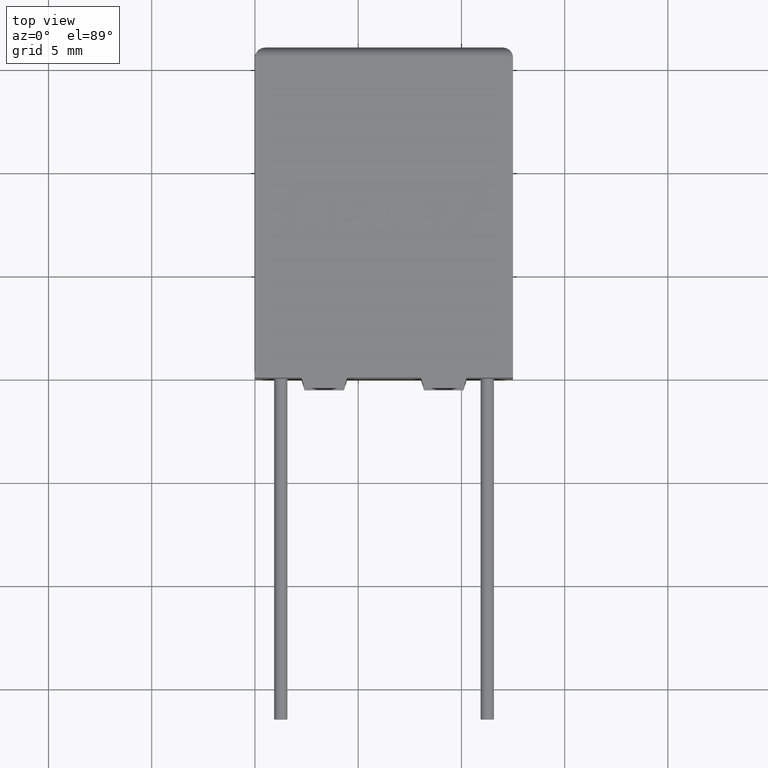
[diagram: clean part render]
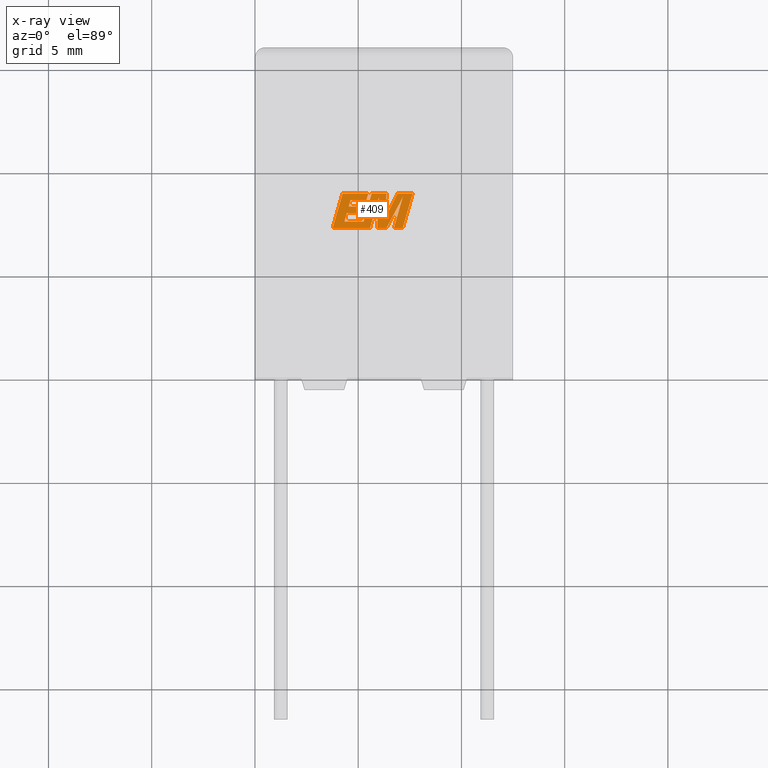
[diagram: x-ray — body ghosted, one internal face saturated and labeled with its STEP entity id]
A machine part, top view, then the same camera in x-ray: the body is ghosted and one INTERNAL B-rep face — a face not visible from any outside direction — is saturated and labeled: STEP entity #409.
In plain terms, the highlighted planar face has unit normal (0, 0, -1).
Its self-contained STEP definition (entity closure, byte-faithful):
#37 = LINE ( 'NONE', #587, #1955 ) ;
#44 = LINE ( 'NONE', #140, #2229 ) ;
#45 = EDGE_CURVE ( 'NONE', #969, #1070, #987, .T. ) ;
#71 = ORIENTED_EDGE ( 'NONE', *, *, #2756, .F. ) ;
#105 = CARTESIAN_POINT ( 'NONE',  ( 6.305562013259007300, 7.716622498760993500, 6.500000000000000000 ) ) ;
#109 = EDGE_CURVE ( 'NONE', #1076, #1800, #2380, .T. ) ;
#128 = DIRECTION ( 'NONE',  ( 0.2740217765954066100, 0.9617234872620595800, 0.0000000000000000000 ) ) ;
#132 = VECTOR ( 'NONE', #2176, 1000.000000000000200 ) ;
#140 = CARTESIAN_POINT ( 'NONE',  ( 5.918042331267495900, 7.236799999999948200, 6.500000000000000000 ) ) ;
#178 = ORIENTED_EDGE ( 'NONE', *, *, #2631, .F. ) ;
#183 = VERTEX_POINT ( 'NONE', #3063 ) ;
#196 = CARTESIAN_POINT ( 'NONE',  ( 7.154716720800360400, 7.236799999999948200, 6.500000000000000000 ) ) ;
#212 = EDGE_CURVE ( 'NONE', #1439, #299, #1859, .T. ) ;
#221 = DIRECTION ( 'NONE',  ( -0.05596501978068205200, -0.9984327301130245800, 0.0000000000000000000 ) ) ;
#284 = CARTESIAN_POINT ( 'NONE',  ( 6.900873444579220400, 8.916926350617030600, 6.500000000000000000 ) ) ;
#299 = VERTEX_POINT ( 'NONE', #2149 ) ;
#339 = ORIENTED_EDGE ( 'NONE', *, *, #1787, .F. ) ;
#356 = EDGE_CURVE ( 'NONE', #1574, #1439, #44, .T. ) ;
#368 = VECTOR ( 'NONE', #2725, 1000.000000000000100 ) ;
#378 = PLANE ( 'NONE',  #2338 ) ;
#387 = DIRECTION ( 'NONE',  ( -1.000000000000000000, 0.0000000000000000000, 0.0000000000000000000 ) ) ;
#397 = VECTOR ( 'NONE', #1173, 1000.000000000000100 ) ;
#404 = DIRECTION ( 'NONE',  ( -1.000000000000000000, 0.0000000000000000000, 0.0000000000000000000 ) ) ;
#406 = EDGE_CURVE ( 'NONE', #654, #2210, #823, .T. ) ;
#409 = ADVANCED_FACE ( 'NONE', ( #741 ), #378, .T. ) ;
#424 = CARTESIAN_POINT ( 'NONE',  ( 5.260969183754191600, 8.284619691102300000, 6.500000000000000000 ) ) ;
#433 = DIRECTION ( 'NONE',  ( -1.000000000000000000, 0.0000000000000000000, 0.0000000000000000000 ) ) ;
#452 = VERTEX_POINT ( 'NONE', #2914 ) ;
#456 = VECTOR ( 'NONE', #890, 1000.000000000000000 ) ;
#587 = CARTESIAN_POINT ( 'NONE',  ( 5.273347318481253200, 7.236799999999946400, 6.500000000000000000 ) ) ;
#634 = ORIENTED_EDGE ( 'NONE', *, *, #1789, .F. ) ;
#654 = VERTEX_POINT ( 'NONE', #1979 ) ;
#670 = LINE ( 'NONE', #1153, #949 ) ;
#683 = CARTESIAN_POINT ( 'NONE',  ( 7.159375763349700600, 8.739775453150048900, 6.500000000000000000 ) ) ;
#691 = CARTESIAN_POINT ( 'NONE',  ( 5.172253248538842400, 7.974021963069283500, 6.500000000000000000 ) ) ;
#703 = DIRECTION ( 'NONE',  ( -1.000000000000000000, 0.0000000000000000000, 0.0000000000000000000 ) ) ;
#738 = LINE ( 'NONE', #1516, #1770 ) ;
#741 = FACE_OUTER_BOUND ( 'NONE', #2788, .T. ) ;
#776 = LINE ( 'NONE', #2749, #2897 ) ;
#811 = ORIENTED_EDGE ( 'NONE', *, *, #1026, .F. ) ;
#817 = VECTOR ( 'NONE', #965, 1000.000000000000100 ) ;
#823 = LINE ( 'NONE', #2875, #904 ) ;
#876 = ORIENTED_EDGE ( 'NONE', *, *, #1412, .F. ) ;
#883 = CARTESIAN_POINT ( 'NONE',  ( 5.572404720726212600, 7.236799999999948200, 6.500000000000000000 ) ) ;
#884 = DIRECTION ( 'NONE',  ( -1.000000000000000000, 0.0000000000000000000, 0.0000000000000000000 ) ) ;
#890 = DIRECTION ( 'NONE',  ( 0.2732148821745924400, 0.9619530280415585800, 0.0000000000000000000 ) ) ;
#904 = VECTOR ( 'NONE', #128, 1000.000000000000100 ) ;
#910 = ORIENTED_EDGE ( 'NONE', *, *, #2080, .F. ) ;
#918 = DIRECTION ( 'NONE',  ( 0.2763139702539115800, 0.9610674221107072800, 0.0000000000000000000 ) ) ;
#932 = ORIENTED_EDGE ( 'NONE', *, *, #3242, .F. ) ;
#943 = CARTESIAN_POINT ( 'NONE',  ( 6.001884662761726800, 8.732572328159170300, 6.500000000000000000 ) ) ;
#949 = VECTOR ( 'NONE', #884, 1000.000000000000000 ) ;
#963 = VERTEX_POINT ( 'NONE', #1617 ) ;
#965 = DIRECTION ( 'NONE',  ( -0.2760118818968562100, -0.9611542233438689100, 0.0000000000000000000 ) ) ;
#969 = VERTEX_POINT ( 'NONE', #2870 ) ;
#974 = CARTESIAN_POINT ( 'NONE',  ( 5.172253248538842400, 7.974021963069283500, 6.500000000000000000 ) ) ;
#987 = LINE ( 'NONE', #2671, #1229 ) ;
#1026 = EDGE_CURVE ( 'NONE', #1088, #2871, #1895, .T. ) ;
#1070 = VERTEX_POINT ( 'NONE', #1901 ) ;
#1076 = VERTEX_POINT ( 'NONE', #2882 ) ;
#1088 = VERTEX_POINT ( 'NONE', #883 ) ;
#1121 = VERTEX_POINT ( 'NONE', #1638 ) ;
#1126 = CARTESIAN_POINT ( 'NONE',  ( 5.654668496389301200, 8.916926350617030600, 6.500000000000000000 ) ) ;
#1134 = LINE ( 'NONE', #3077, #456 ) ;
#1137 = CARTESIAN_POINT ( 'NONE',  ( 0.05673879063646859000, -2.086099661403235200, 6.499999999999998200 ) ) ;
#1151 = LINE ( 'NONE', #2585, #2910 ) ;
#1153 = CARTESIAN_POINT ( 'NONE',  ( 5.263615438179811300, 7.556445057373055700, 6.500000000000000000 ) ) ;
#1168 = ORIENTED_EDGE ( 'NONE', *, *, #356, .F. ) ;
#1173 = DIRECTION ( 'NONE',  ( 0.2759782365590801600, 0.9611638845408936300, 0.0000000000000000000 ) ) ;
#1190 = LINE ( 'NONE', #691, #132 ) ;
#1211 = ORIENTED_EDGE ( 'NONE', *, *, #2177, .F. ) ;
#1218 = VECTOR ( 'NONE', #2411, 1000.000000000000000 ) ;
#1229 = VECTOR ( 'NONE', #2171, 1000.000000000000000 ) ;
#1259 = CARTESIAN_POINT ( 'NONE',  ( 5.396255110067309100, 8.597122926668934200, 6.500000000000000000 ) ) ;
#1268 = LINE ( 'NONE', #2069, #2771 ) ;
#1319 = CARTESIAN_POINT ( 'NONE',  ( 7.637765434955762000, 8.916926350617030600, 6.500000000000000000 ) ) ;
#1374 = DIRECTION ( 'NONE',  ( 1.000000000000000000, 0.0000000000000000000, 0.0000000000000000000 ) ) ;
#1412 = EDGE_CURVE ( 'NONE', #2657, #1703, #776, .T. ) ;
#1439 = VERTEX_POINT ( 'NONE', #2802 ) ;
#1446 = DIRECTION ( 'NONE',  ( -0.2765379750249960500, -0.9610029908221278100, 0.0000000000000000000 ) ) ;
#1485 = ORIENTED_EDGE ( 'NONE', *, *, #2872, .F. ) ;
#1498 = VERTEX_POINT ( 'NONE', #284 ) ;
#1501 = LINE ( 'NONE', #2618, #1841 ) ;
#1516 = CARTESIAN_POINT ( 'NONE',  ( 6.900873444579220400, 8.916926350617030600, 6.500000000000000000 ) ) ;
#1527 = DIRECTION ( 'NONE',  ( 0.2793947940878287500, 0.9601763114327596100, 0.0000000000000000000 ) ) ;
#1574 = VERTEX_POINT ( 'NONE', #2249 ) ;
#1593 = CARTESIAN_POINT ( 'NONE',  ( 4.630772375745746800, 8.597122926668934200, 6.500000000000000000 ) ) ;
#1617 = CARTESIAN_POINT ( 'NONE',  ( 4.245864962489515700, 8.916926350617030600, 6.500000000000000000 ) ) ;
#1618 = ORIENTED_EDGE ( 'NONE', *, *, #406, .F. ) ;
#1627 = EDGE_CURVE ( 'NONE', #1498, #183, #738, .T. ) ;
#1638 = CARTESIAN_POINT ( 'NONE',  ( 3.762392233244096200, 7.236799999999946400, 6.500000000000000000 ) ) ;
#1645 = ORIENTED_EDGE ( 'NONE', *, *, #2607, .F. ) ;
#1648 = DIRECTION ( 'NONE',  ( 1.000000000000000000, 4.833865254349439700E-015, 0.0000000000000000000 ) ) ;
#1688 = ORIENTED_EDGE ( 'NONE', *, *, #2211, .F. ) ;
#1703 = VERTEX_POINT ( 'NONE', #2052 ) ;
#1713 = CARTESIAN_POINT ( 'NONE',  ( 6.001884662761726800, 8.732572328159170300, 6.500000000000000000 ) ) ;
#1770 = VECTOR ( 'NONE', #2009, 1000.000000000000000 ) ;
#1787 = EDGE_CURVE ( 'NONE', #963, #1121, #3053, .T. ) ;
#1789 = EDGE_CURVE ( 'NONE', #3044, #2657, #2297, .T. ) ;
#1796 = ORIENTED_EDGE ( 'NONE', *, *, #45, .F. ) ;
#1800 = VERTEX_POINT ( 'NONE', #2673 ) ;
#1809 = DIRECTION ( 'NONE',  ( 1.000000000000000000, 0.0000000000000000000, 0.0000000000000000000 ) ) ;
#1812 = VECTOR ( 'NONE', #2078, 1000.000000000000100 ) ;
#1828 = VERTEX_POINT ( 'NONE', #1319 ) ;
#1841 = VECTOR ( 'NONE', #703, 1000.000000000000000 ) ;
#1859 = LINE ( 'NONE', #2851, #1812 ) ;
#1865 = VERTEX_POINT ( 'NONE', #974 ) ;
#1895 = LINE ( 'NONE', #2629, #397 ) ;
#1901 = CARTESIAN_POINT ( 'NONE',  ( 7.154716720800360400, 7.236799999999948200, 6.500000000000000000 ) ) ;
#1942 = CARTESIAN_POINT ( 'NONE',  ( 6.370174868380927600, 8.916926350617030600, 6.500000000000000000 ) ) ;
#1955 = VECTOR ( 'NONE', #1648, 1000.000000000000000 ) ;
#1972 = VECTOR ( 'NONE', #221, 1000.000000000000200 ) ;
#1979 = CARTESIAN_POINT ( 'NONE',  ( 4.332246267819605200, 7.556445057373055700, 6.500000000000000000 ) ) ;
#2009 = DIRECTION ( 'NONE',  ( -0.4443210308329058600, -0.8958676361827030400, 0.0000000000000000000 ) ) ;
#2045 = DIRECTION ( 'NONE',  ( -1.000000000000000000, 0.0000000000000000000, 0.0000000000000000000 ) ) ;
#2052 = CARTESIAN_POINT ( 'NONE',  ( 4.630772375745746800, 8.597122926668934200, 6.500000000000000000 ) ) ;
#2054 = LINE ( 'NONE', #105, #368 ) ;
#2069 = CARTESIAN_POINT ( 'NONE',  ( 5.487086005387529200, 8.916926350617030600, 6.500000000000000000 ) ) ;
#2078 = DIRECTION ( 'NONE',  ( 0.4668459304955212000, 0.8843386665637611400, 0.0000000000000000000 ) ) ;
#2080 = EDGE_CURVE ( 'NONE', #1121, #1088, #37, .T. ) ;
#2110 = ORIENTED_EDGE ( 'NONE', *, *, #1627, .F. ) ;
#2148 = ORIENTED_EDGE ( 'NONE', *, *, #212, .F. ) ;
#2149 = CARTESIAN_POINT ( 'NONE',  ( 7.159375763349700600, 8.739775453150048900, 6.500000000000000000 ) ) ;
#2171 = DIRECTION ( 'NONE',  ( 1.000000000000000000, 0.0000000000000000000, 0.0000000000000000000 ) ) ;
#2176 = DIRECTION ( 'NONE',  ( 0.2746459304916903900, 0.9615454294334477800, 0.0000000000000000000 ) ) ;
#2177 = EDGE_CURVE ( 'NONE', #183, #1076, #2054, .T. ) ;
#2210 = VERTEX_POINT ( 'NONE', #2808 ) ;
#2211 = EDGE_CURVE ( 'NONE', #2210, #1865, #1151, .T. ) ;
#2229 = VECTOR ( 'NONE', #3122, 1000.000000000000000 ) ;
#2249 = CARTESIAN_POINT ( 'NONE',  ( 5.918042331267495900, 7.236799999999948200, 6.500000000000000000 ) ) ;
#2250 = EDGE_CURVE ( 'NONE', #452, #654, #670, .T. ) ;
#2251 = ORIENTED_EDGE ( 'NONE', *, *, #2391, .F. ) ;
#2284 = CARTESIAN_POINT ( 'NONE',  ( 4.245864962489515700, 8.916926350617030600, 6.500000000000000000 ) ) ;
#2297 = LINE ( 'NONE', #424, #3166 ) ;
#2320 = ORIENTED_EDGE ( 'NONE', *, *, #2822, .F. ) ;
#2333 = VECTOR ( 'NONE', #918, 1000.000000000000200 ) ;
#2338 = AXIS2_PLACEMENT_3D ( 'NONE', #1137, #2885, #387 ) ;
#2362 = ORIENTED_EDGE ( 'NONE', *, *, #2386, .F. ) ;
#2369 = LINE ( 'NONE', #196, #2333 ) ;
#2380 = LINE ( 'NONE', #1942, #3027 ) ;
#2386 = EDGE_CURVE ( 'NONE', #1865, #3044, #1190, .T. ) ;
#2391 = EDGE_CURVE ( 'NONE', #2871, #1574, #2626, .T. ) ;
#2411 = DIRECTION ( 'NONE',  ( -0.2762517575166160700, -0.9610853065513907900, 0.0000000000000000000 ) ) ;
#2488 = VERTEX_POINT ( 'NONE', #1259 ) ;
#2497 = VECTOR ( 'NONE', #1809, 1000.000000000000000 ) ;
#2542 = ORIENTED_EDGE ( 'NONE', *, *, #2250, .F. ) ;
#2555 = CARTESIAN_POINT ( 'NONE',  ( 5.260969183754191600, 8.284619691102300000, 6.500000000000000000 ) ) ;
#2560 = ORIENTED_EDGE ( 'NONE', *, *, #3184, .F. ) ;
#2585 = CARTESIAN_POINT ( 'NONE',  ( 4.451225545210293800, 7.974021963069283500, 6.500000000000000000 ) ) ;
#2607 = EDGE_CURVE ( 'NONE', #2956, #963, #1268, .T. ) ;
#2618 = CARTESIAN_POINT ( 'NONE',  ( 7.637765434955762000, 8.916926350617030600, 6.500000000000000000 ) ) ;
#2626 = LINE ( 'NONE', #1713, #1972 ) ;
#2629 = CARTESIAN_POINT ( 'NONE',  ( 5.572404720726212600, 7.236799999999948200, 6.500000000000000000 ) ) ;
#2631 = EDGE_CURVE ( 'NONE', #1703, #2488, #3170, .T. ) ;
#2646 = VECTOR ( 'NONE', #1446, 1000.000000000000100 ) ;
#2657 = VERTEX_POINT ( 'NONE', #3052 ) ;
#2671 = CARTESIAN_POINT ( 'NONE',  ( 6.727770644011506800, 7.236799999999948200, 6.500000000000000000 ) ) ;
#2673 = CARTESIAN_POINT ( 'NONE',  ( 5.654668496389301200, 8.916926350617030600, 6.500000000000000000 ) ) ;
#2725 = DIRECTION ( 'NONE',  ( 0.05375259206908267900, 0.9985542843760947300, 0.0000000000000000000 ) ) ;
#2749 = CARTESIAN_POINT ( 'NONE',  ( 4.539839308439980000, 8.284619691102300000, 6.500000000000000000 ) ) ;
#2756 = EDGE_CURVE ( 'NONE', #1800, #452, #3167, .T. ) ;
#2771 = VECTOR ( 'NONE', #2045, 1000.000000000000000 ) ;
#2788 = EDGE_LOOP ( 'NONE', ( #932, #1485, #1796, #2320, #2148, #1168, #2251, #811, #910, #339, #1645, #2560, #178, #876, #634, #2362, #1688, #1618, #2542, #71, #2886, #1211, #2110 ) ) ;
#2802 = CARTESIAN_POINT ( 'NONE',  ( 6.365948990929820400, 7.236799999999948200, 6.500000000000000000 ) ) ;
#2808 = CARTESIAN_POINT ( 'NONE',  ( 4.451225545210293800, 7.974021963069283500, 6.500000000000000000 ) ) ;
#2812 = LINE ( 'NONE', #683, #817 ) ;
#2822 = EDGE_CURVE ( 'NONE', #299, #969, #2812, .T. ) ;
#2851 = CARTESIAN_POINT ( 'NONE',  ( 6.365948990929820400, 7.236799999999948200, 6.500000000000000000 ) ) ;
#2870 = CARTESIAN_POINT ( 'NONE',  ( 6.727770644011506800, 7.236799999999948200, 6.500000000000000000 ) ) ;
#2871 = VERTEX_POINT ( 'NONE', #943 ) ;
#2872 = EDGE_CURVE ( 'NONE', #1070, #1828, #2369, .T. ) ;
#2875 = CARTESIAN_POINT ( 'NONE',  ( 4.332246267819605200, 7.556445057373055700, 6.500000000000000000 ) ) ;
#2882 = CARTESIAN_POINT ( 'NONE',  ( 6.370174868380927600, 8.916926350617030600, 6.500000000000000000 ) ) ;
#2885 = DIRECTION ( 'NONE',  ( 0.0000000000000000000, 0.0000000000000000000, -1.000000000000000000 ) ) ;
#2886 = ORIENTED_EDGE ( 'NONE', *, *, #109, .F. ) ;
#2897 = VECTOR ( 'NONE', #1527, 1000.000000000000000 ) ;
#2910 = VECTOR ( 'NONE', #1374, 1000.000000000000000 ) ;
#2914 = CARTESIAN_POINT ( 'NONE',  ( 5.263615438179811300, 7.556445057373055700, 6.500000000000000000 ) ) ;
#2956 = VERTEX_POINT ( 'NONE', #2981 ) ;
#2981 = CARTESIAN_POINT ( 'NONE',  ( 5.487086005387529200, 8.916926350617030600, 6.500000000000000000 ) ) ;
#3027 = VECTOR ( 'NONE', #433, 1000.000000000000000 ) ;
#3044 = VERTEX_POINT ( 'NONE', #2555 ) ;
#3052 = CARTESIAN_POINT ( 'NONE',  ( 4.539839308439980000, 8.284619691102300000, 6.500000000000000000 ) ) ;
#3053 = LINE ( 'NONE', #2284, #2646 ) ;
#3063 = CARTESIAN_POINT ( 'NONE',  ( 6.305562013259007300, 7.716622498760993500, 6.500000000000000000 ) ) ;
#3077 = CARTESIAN_POINT ( 'NONE',  ( 5.396255110067309100, 8.597122926668934200, 6.500000000000000000 ) ) ;
#3122 = DIRECTION ( 'NONE',  ( 1.000000000000000000, 0.0000000000000000000, 0.0000000000000000000 ) ) ;
#3166 = VECTOR ( 'NONE', #404, 1000.000000000000000 ) ;
#3167 = LINE ( 'NONE', #1126, #1218 ) ;
#3170 = LINE ( 'NONE', #1593, #2497 ) ;
#3184 = EDGE_CURVE ( 'NONE', #2488, #2956, #1134, .T. ) ;
#3242 = EDGE_CURVE ( 'NONE', #1828, #1498, #1501, .T. ) ;